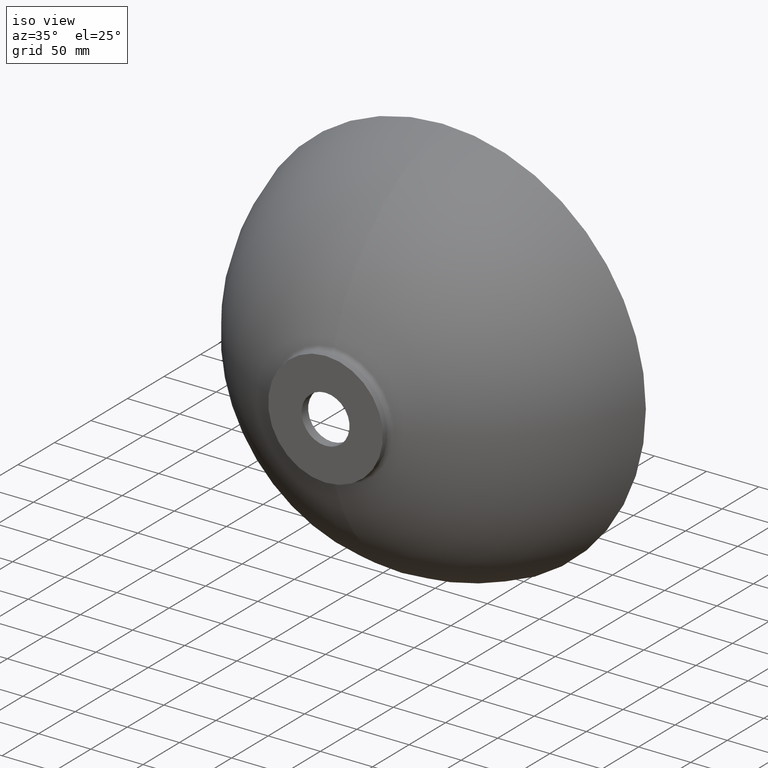
[diagram: clean part render]
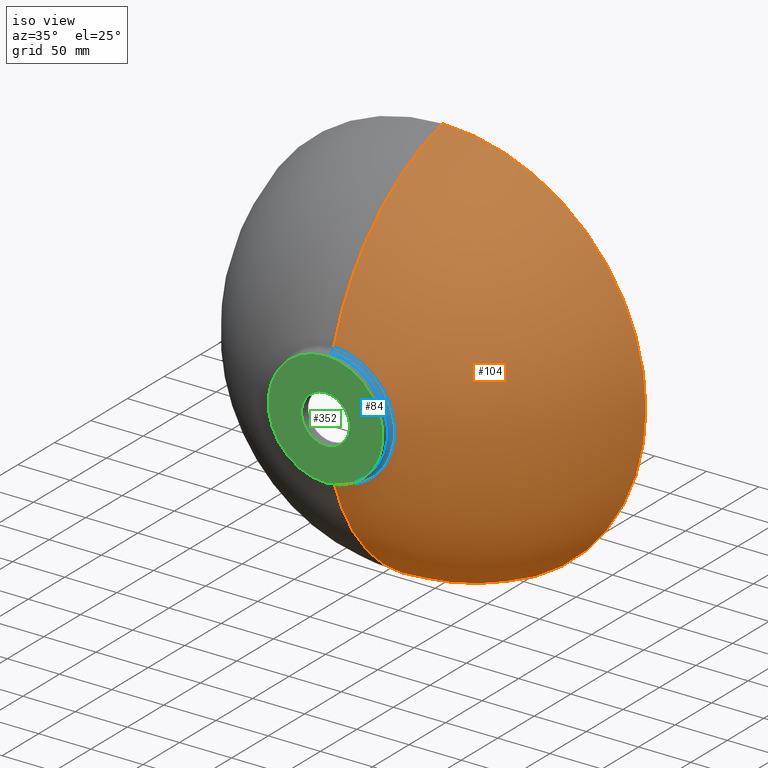
[diagram: same view with three faces highlighted in distinct colors, each labeled with its STEP entity id]
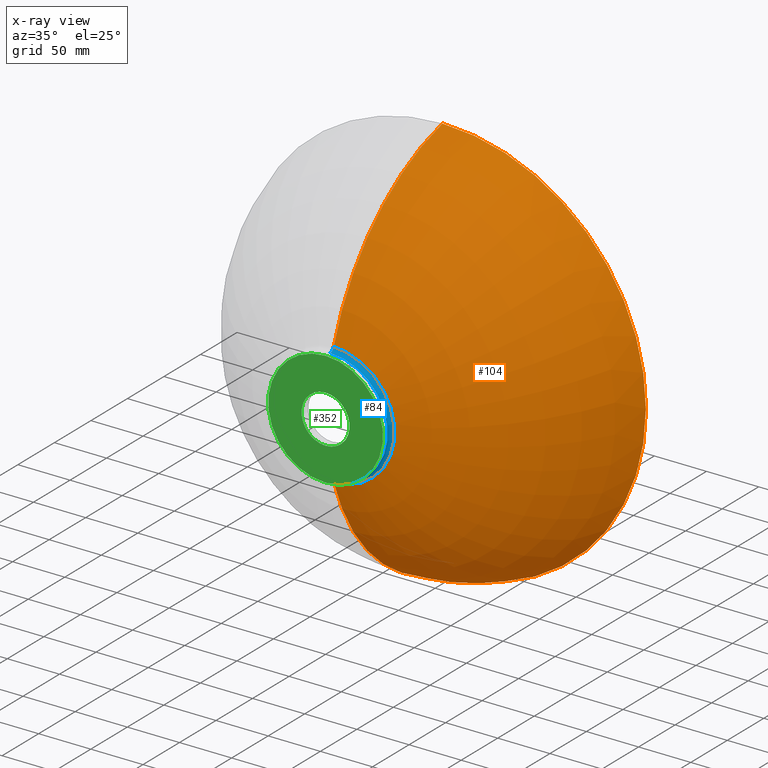
[diagram: x-ray of the same camera — body ghosted, the three highlighted faces saturated]
A machine part, iso view with three faces highlighted in distinct colors.
The next image is the same camera in x-ray (body ghosted, the three faces saturated) — at least one of them is partly hidden behind the body in this view.
Their STEP definitions:

[orange] entity #104 — the highlighted toroidal blend (fillet) surface has major radius 6.4484 mm and minor (blend) radius 207.015 mm.
#19 = AXIS2_PLACEMENT_3D ( 'NONE', #266, #230, #312 ) ;
#25 = DIRECTION ( 'NONE',  ( -1.000000000000000000, 0.0000000000000000000, 0.0000000000000000000 ) ) ;
#30 = VERTEX_POINT ( 'NONE', #140 ) ;
#34 = ORIENTED_EDGE ( 'NONE', *, *, #114, .T. ) ;
#37 = AXIS2_PLACEMENT_3D ( 'NONE', #439, #88, #365 ) ;
#60 = DIRECTION ( 'NONE',  ( -0.0000000000000000000, -1.000000000000000000, -0.0000000000000000000 ) ) ;
#71 = CIRCLE ( 'NONE', #37, 58.43293405444508400 ) ;
#88 = DIRECTION ( 'NONE',  ( -0.0000000000000000000, -1.000000000000000000, -0.0000000000000000000 ) ) ;
#97 = ORIENTED_EDGE ( 'NONE', *, *, #125, .F. ) ;
#103 = EDGE_LOOP ( 'NONE', ( #170, #34, #300, #97 ) ) ;
#104 = ADVANCED_FACE ( 'NONE', ( #281 ), #261, .T. ) ;
#114 = EDGE_CURVE ( 'NONE', #448, #405, #339, .T. ) ;
#125 = EDGE_CURVE ( 'NONE', #210, #30, #234, .T. ) ;
#136 = DIRECTION ( 'NONE',  ( 0.0000000000000000000, 0.0000000000000000000, -1.000000000000000000 ) ) ;
#140 = CARTESIAN_POINT ( 'NONE',  ( 0.0000000000000000000, 11.09995979719670700, -58.43293405444508400 ) ) ;
#150 = AXIS2_PLACEMENT_3D ( 'NONE', #217, #25, #443 ) ;
#152 = CARTESIAN_POINT ( 'NONE',  ( 2.388061258337338900E-014, 160.0000000000000000, 195.0000000000000000 ) ) ;
#154 = CARTESIAN_POINT ( 'NONE',  ( 0.0000000000000000000, 160.0000000000000000, 0.0000000000000000000 ) ) ;
#160 = CARTESIAN_POINT ( 'NONE',  ( 7.155970565456453900E-015, 11.09995979719670700, 58.43293405444508400 ) ) ;
#170 = ORIENTED_EDGE ( 'NONE', *, *, #221, .T. ) ;
#206 = AXIS2_PLACEMENT_3D ( 'NONE', #154, #60, #136 ) ;
#210 = VERTEX_POINT ( 'NONE', #395 ) ;
#217 = CARTESIAN_POINT ( 'NONE',  ( 0.0000000000000000000, 207.6851594974558900, 6.448385175845634100 ) ) ;
#221 = EDGE_CURVE ( 'NONE', #210, #448, #295, .T. ) ;
#230 = DIRECTION ( 'NONE',  ( -0.0000000000000000000, -1.000000000000000000, -0.0000000000000000000 ) ) ;
#234 = CIRCLE ( 'NONE', #150, 207.0152804173007700 ) ;
#261 = TOROIDAL_SURFACE ( 'NONE', #19, -6.448385175845634100, 207.0152804173007700 ) ;
#266 = CARTESIAN_POINT ( 'NONE',  ( 0.0000000000000000000, 207.6851594974558900, 0.0000000000000000000 ) ) ;
#281 = FACE_OUTER_BOUND ( 'NONE', #103, .T. ) ;
#292 = DIRECTION ( 'NONE',  ( -1.224646799147353200E-016, 0.0000000000000000000, -1.000000000000000000 ) ) ;
#295 = CIRCLE ( 'NONE', #206, 195.0000000000000000 ) ;
#300 = ORIENTED_EDGE ( 'NONE', *, *, #306, .F. ) ;
#306 = EDGE_CURVE ( 'NONE', #30, #405, #71, .T. ) ;
#312 = DIRECTION ( 'NONE',  ( 0.0000000000000000000, 0.0000000000000000000, -1.000000000000000000 ) ) ;
#339 = CIRCLE ( 'NONE', #432, 207.0152804173007700 ) ;
#365 = DIRECTION ( 'NONE',  ( 0.0000000000000000000, 0.0000000000000000000, -1.000000000000000000 ) ) ;
#373 = CARTESIAN_POINT ( 'NONE',  ( -7.896994265268598000E-016, 207.6851594974558900, -6.448385175845634100 ) ) ;
#395 = CARTESIAN_POINT ( 'NONE',  ( 0.0000000000000000000, 160.0000000000000000, -195.0000000000000000 ) ) ;
#405 = VERTEX_POINT ( 'NONE', #160 ) ;
#432 = AXIS2_PLACEMENT_3D ( 'NONE', #373, #433, #292 ) ;
#433 = DIRECTION ( 'NONE',  ( 1.000000000000000000, 0.0000000000000000000, -1.224646799147353200E-016 ) ) ;
#439 = CARTESIAN_POINT ( 'NONE',  ( 0.0000000000000000000, 11.09995979719670700, 0.0000000000000000000 ) ) ;
#443 = DIRECTION ( 'NONE',  ( 0.0000000000000000000, 0.0000000000000000000, 1.000000000000000000 ) ) ;
#448 = VERTEX_POINT ( 'NONE', #152 ) ;

[blue] entity #84 — the highlighted toroidal blend (fillet) surface has major radius 60 mm and minor (blend) radius 5 mm.
#6 = ORIENTED_EDGE ( 'NONE', *, *, #381, .F. ) ;
#15 = DIRECTION ( 'NONE',  ( 0.0000000000000000000, 0.0000000000000000000, 1.000000000000000000 ) ) ;
#30 = VERTEX_POINT ( 'NONE', #140 ) ;
#37 = AXIS2_PLACEMENT_3D ( 'NONE', #439, #88, #365 ) ;
#43 = TOROIDAL_SURFACE ( 'NONE', #173, 60.00000000000000000, 4.999999999999998200 ) ;
#52 = CARTESIAN_POINT ( 'NONE',  ( 0.0000000000000000000, 6.351875518007669400, 0.0000000000000000000 ) ) ;
#65 = ORIENTED_EDGE ( 'NONE', *, *, #306, .T. ) ;
#71 = CIRCLE ( 'NONE', #37, 58.43293405444508400 ) ;
#84 = ADVANCED_FACE ( 'NONE', ( #91 ), #43, .F. ) ;
#88 = DIRECTION ( 'NONE',  ( -0.0000000000000000000, -1.000000000000000000, -0.0000000000000000000 ) ) ;
#91 = FACE_OUTER_BOUND ( 'NONE', #269, .T. ) ;
#96 = DIRECTION ( 'NONE',  ( -0.0000000000000000000, -1.000000000000000000, -0.0000000000000000000 ) ) ;
#101 = CARTESIAN_POINT ( 'NONE',  ( 7.347880794884118400E-015, 6.351875518007670300, 60.00000000000000000 ) ) ;
#120 = AXIS2_PLACEMENT_3D ( 'NONE', #146, #402, #15 ) ;
#140 = CARTESIAN_POINT ( 'NONE',  ( 0.0000000000000000000, 11.09995979719670700, -58.43293405444508400 ) ) ;
#146 = CARTESIAN_POINT ( 'NONE',  ( 0.0000000000000000000, 6.351875518007670300, -60.00000000000000000 ) ) ;
#160 = CARTESIAN_POINT ( 'NONE',  ( 7.155970565456453900E-015, 11.09995979719670700, 58.43293405444508400 ) ) ;
#173 = AXIS2_PLACEMENT_3D ( 'NONE', #176, #96, #377 ) ;
#176 = CARTESIAN_POINT ( 'NONE',  ( 0.0000000000000000000, 6.351875518007670300, 0.0000000000000000000 ) ) ;
#240 = EDGE_CURVE ( 'NONE', #246, #405, #444, .T. ) ;
#246 = VERTEX_POINT ( 'NONE', #341 ) ;
#254 = DIRECTION ( 'NONE',  ( -1.224646799147354200E-016, 0.0000000000000000000, -1.000000000000000000 ) ) ;
#269 = EDGE_LOOP ( 'NONE', ( #456, #6, #376, #65 ) ) ;
#286 = AXIS2_PLACEMENT_3D ( 'NONE', #101, #363, #254 ) ;
#305 = CIRCLE ( 'NONE', #355, 54.99999999999999300 ) ;
#306 = EDGE_CURVE ( 'NONE', #30, #405, #71, .T. ) ;
#317 = CIRCLE ( 'NONE', #120, 4.999999999999997300 ) ;
#326 = DIRECTION ( 'NONE',  ( -0.0000000000000000000, -1.000000000000000000, -0.0000000000000000000 ) ) ;
#341 = CARTESIAN_POINT ( 'NONE',  ( 6.735557395310443400E-015, 6.351875518007669400, 54.99999999999999300 ) ) ;
#346 = DIRECTION ( 'NONE',  ( 0.0000000000000000000, 0.0000000000000000000, -1.000000000000000000 ) ) ;
#348 = CARTESIAN_POINT ( 'NONE',  ( 0.0000000000000000000, 6.351875518007669400, -54.99999999999999300 ) ) ;
#355 = AXIS2_PLACEMENT_3D ( 'NONE', #52, #326, #346 ) ;
#363 = DIRECTION ( 'NONE',  ( 1.000000000000000000, 0.0000000000000000000, -1.224646799147353200E-016 ) ) ;
#365 = DIRECTION ( 'NONE',  ( 0.0000000000000000000, 0.0000000000000000000, -1.000000000000000000 ) ) ;
#376 = ORIENTED_EDGE ( 'NONE', *, *, #391, .T. ) ;
#377 = DIRECTION ( 'NONE',  ( 0.0000000000000000000, 0.0000000000000000000, -1.000000000000000000 ) ) ;
#381 = EDGE_CURVE ( 'NONE', #422, #246, #305, .T. ) ;
#391 = EDGE_CURVE ( 'NONE', #422, #30, #317, .T. ) ;
#402 = DIRECTION ( 'NONE',  ( -1.000000000000000000, 0.0000000000000000000, 0.0000000000000000000 ) ) ;
#405 = VERTEX_POINT ( 'NONE', #160 ) ;
#422 = VERTEX_POINT ( 'NONE', #348 ) ;
#439 = CARTESIAN_POINT ( 'NONE',  ( 0.0000000000000000000, 11.09995979719670700, 0.0000000000000000000 ) ) ;
#444 = CIRCLE ( 'NONE', #286, 4.999999999999997300 ) ;
#456 = ORIENTED_EDGE ( 'NONE', *, *, #240, .F. ) ;

[green] entity #352 — the highlighted planar face has unit normal (0, 1, 0).
#11 = DIRECTION ( 'NONE',  ( 0.0000000000000000000, 0.0000000000000000000, -1.000000000000000000 ) ) ;
#21 = VERTEX_POINT ( 'NONE', #342 ) ;
#28 = ORIENTED_EDGE ( 'NONE', *, *, #302, .F. ) ;
#47 = AXIS2_PLACEMENT_3D ( 'NONE', #113, #208, #183 ) ;
#49 = ORIENTED_EDGE ( 'NONE', *, *, #347, .T. ) ;
#53 = CARTESIAN_POINT ( 'NONE',  ( 0.0000000000000000000, 0.0000000000000000000, -55.00000000000001400 ) ) ;
#58 = DIRECTION ( 'NONE',  ( 0.0000000000000000000, 0.0000000000000000000, -1.000000000000000000 ) ) ;
#64 = AXIS2_PLACEMENT_3D ( 'NONE', #436, #131, #308 ) ;
#74 = EDGE_CURVE ( 'NONE', #178, #86, #294, .T. ) ;
#80 = CIRCLE ( 'NONE', #47, 55.00000000000001400 ) ;
#86 = VERTEX_POINT ( 'NONE', #205 ) ;
#93 = CIRCLE ( 'NONE', #64, 23.00000000000000000 ) ;
#105 = EDGE_CURVE ( 'NONE', #21, #393, #93, .T. ) ;
#113 = CARTESIAN_POINT ( 'NONE',  ( 0.0000000000000000000, 0.0000000000000000000, 0.0000000000000000000 ) ) ;
#131 = DIRECTION ( 'NONE',  ( -0.0000000000000000000, -1.000000000000000000, -0.0000000000000000000 ) ) ;
#144 = AXIS2_PLACEMENT_3D ( 'NONE', #379, #380, #58 ) ;
#147 = DIRECTION ( 'NONE',  ( 0.0000000000000000000, 1.000000000000000000, 0.0000000000000000000 ) ) ;
#156 = DIRECTION ( 'NONE',  ( 0.0000000000000000000, -0.0000000000000000000, 1.000000000000000000 ) ) ;
#178 = VERTEX_POINT ( 'NONE', #53 ) ;
#183 = DIRECTION ( 'NONE',  ( 0.0000000000000000000, 0.0000000000000000000, -1.000000000000000000 ) ) ;
#196 = FACE_BOUND ( 'NONE', #202, .T. ) ;
#200 = AXIS2_PLACEMENT_3D ( 'NONE', #328, #219, #11 ) ;
#202 = EDGE_LOOP ( 'NONE', ( #389, #28 ) ) ;
#205 = CARTESIAN_POINT ( 'NONE',  ( 6.735557395310445800E-015, 0.0000000000000000000, 55.00000000000002100 ) ) ;
#208 = DIRECTION ( 'NONE',  ( -0.0000000000000000000, -1.000000000000000000, -0.0000000000000000000 ) ) ;
#219 = DIRECTION ( 'NONE',  ( -0.0000000000000000000, -1.000000000000000000, -0.0000000000000000000 ) ) ;
#236 = AXIS2_PLACEMENT_3D ( 'NONE', #345, #147, #156 ) ;
#239 = CARTESIAN_POINT ( 'NONE',  ( 2.816687638038912400E-015, -6.123233995736772200E-017, 23.00000000000000000 ) ) ;
#287 = PLANE ( 'NONE',  #236 ) ;
#294 = CIRCLE ( 'NONE', #144, 55.00000000000001400 ) ;
#302 = EDGE_CURVE ( 'NONE', #393, #21, #400, .T. ) ;
#308 = DIRECTION ( 'NONE',  ( 0.0000000000000000000, 0.0000000000000000000, -1.000000000000000000 ) ) ;
#328 = CARTESIAN_POINT ( 'NONE',  ( 0.0000000000000000000, -6.123233995736772200E-017, 0.0000000000000000000 ) ) ;
#333 = ORIENTED_EDGE ( 'NONE', *, *, #74, .T. ) ;
#342 = CARTESIAN_POINT ( 'NONE',  ( 0.0000000000000000000, -6.123233995736772200E-017, -23.00000000000000000 ) ) ;
#345 = CARTESIAN_POINT ( 'NONE',  ( -23.00000000000000000, -3.061616997868386100E-017, 0.0000000000000000000 ) ) ;
#347 = EDGE_CURVE ( 'NONE', #86, #178, #80, .T. ) ;
#352 = ADVANCED_FACE ( 'NONE', ( #196, #427 ), #287, .F. ) ;
#379 = CARTESIAN_POINT ( 'NONE',  ( 0.0000000000000000000, 0.0000000000000000000, 0.0000000000000000000 ) ) ;
#380 = DIRECTION ( 'NONE',  ( -0.0000000000000000000, -1.000000000000000000, -0.0000000000000000000 ) ) ;
#389 = ORIENTED_EDGE ( 'NONE', *, *, #105, .F. ) ;
#393 = VERTEX_POINT ( 'NONE', #239 ) ;
#400 = CIRCLE ( 'NONE', #200, 23.00000000000000000 ) ;
#427 = FACE_OUTER_BOUND ( 'NONE', #450, .T. ) ;
#436 = CARTESIAN_POINT ( 'NONE',  ( 0.0000000000000000000, -6.123233995736772200E-017, 0.0000000000000000000 ) ) ;
#450 = EDGE_LOOP ( 'NONE', ( #333, #49 ) ) ;